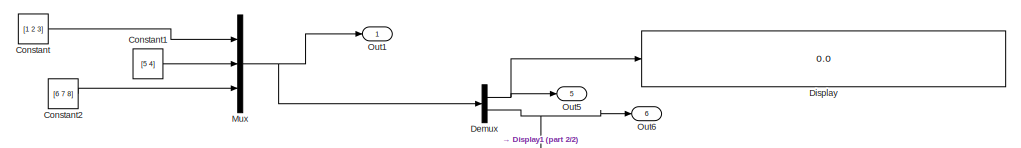
[diagram: root canvas - part 1/2, full width, top band]
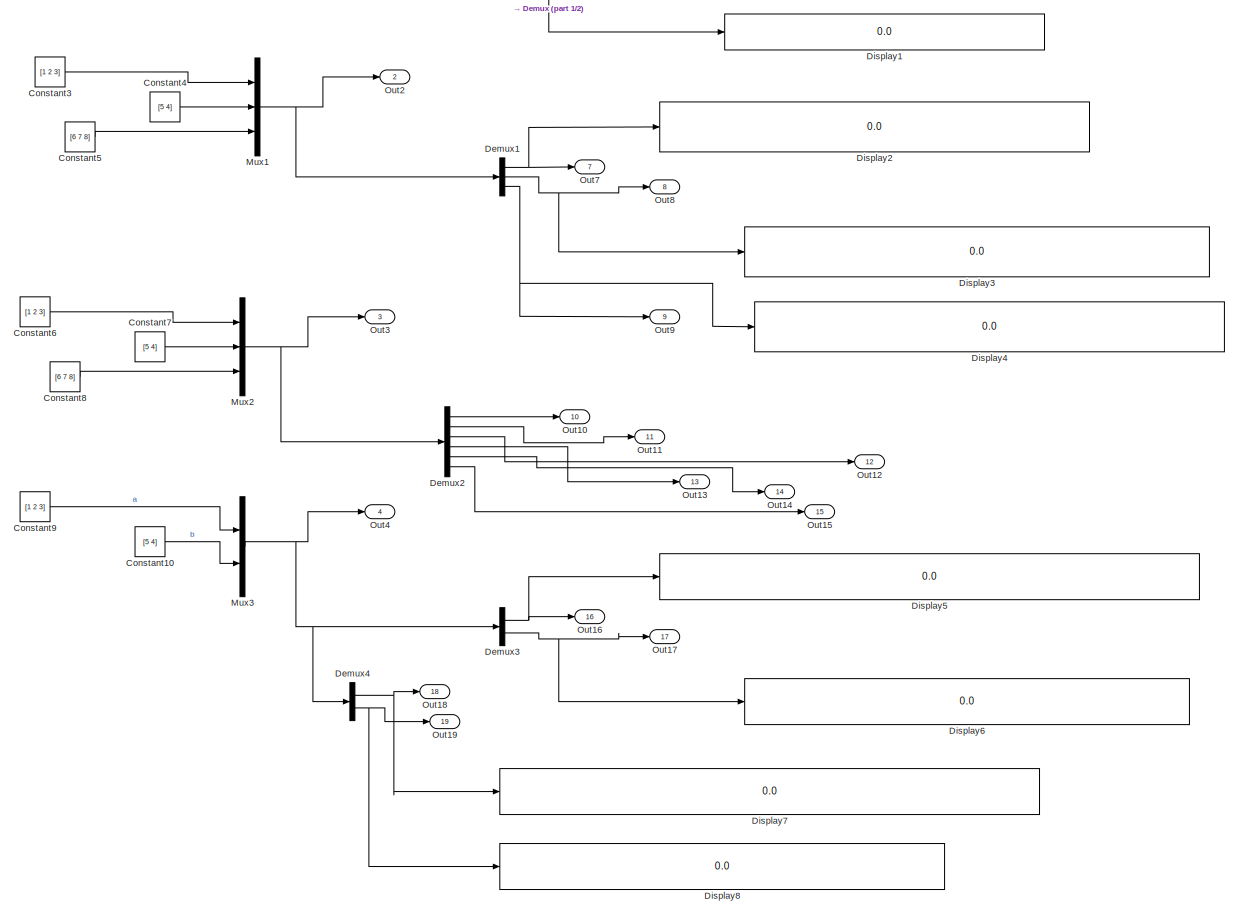
[diagram: root canvas - part 2/2, most of the canvas]
MODEL slx_6f7d9aa6d391
KIND model
CONFIG AbsTol = auto
CONFIG EnableMultiTasking = off
CONFIG FixedStep = 0.200000
CONFIG MaxStep = auto
CONFIG MinStep = auto
CONFIG RelTol = 1e-3
CONFIG SampleTimeConstraint = Unconstrained
CONFIG Solver = FixedStepDiscrete
CONFIG SolverName = FixedStepDiscrete
CONFIG StartTime = 0.0
CONFIG StopTime = 10.0
BLOCK [Constant] Constant
  Value = [1 2 3]
BLOCK [Constant] Constant1
  Value = [5  4]
BLOCK [Constant] Constant10
  Value = [5  4]
BLOCK [Constant] Constant2
  Value = [6 7 8]
BLOCK [Constant] Constant3
  OutDataTypeStr = int8
  Value = [1 2 3]
BLOCK [Constant] Constant4
  OutDataTypeStr = int8
  Value = [5  4]
BLOCK [Constant] Constant5
  OutDataTypeStr = int8
  Value = [6 7 8]
BLOCK [Constant] Constant6
  Value = [1 2 3]
BLOCK [Constant] Constant7
  Value = [5  4]
BLOCK [Constant] Constant8
  Value = [6 7 8]
BLOCK [Constant] Constant9
  Value = [1 2 3]
BLOCK [Demux] Demux
  DisplayOption = bar
  Outputs = 2
  Ports = [1, 2]
BLOCK [Demux] Demux1
  DisplayOption = bar
  Outputs = 3
  Ports = [1, 3]
BLOCK [Demux] Demux2
  DisplayOption = bar
  Outputs = 6
  Ports = [1, 6]
BLOCK [Demux] Demux3
  DisplayOption = bar
  Outputs = [2 3]
  Ports = [1, 2]
BLOCK [Demux] Demux4
  DisplayOption = bar
  Outputs = 2
  Ports = [1, 2]
BLOCK [Display] Display
  Decimation = 1
  Ports = [1]
BLOCK [Display] Display1
  Decimation = 1
  Ports = [1]
BLOCK [Display] Display2
  Decimation = 1
  Ports = [1]
BLOCK [Display] Display3
  Decimation = 1
  Ports = [1]
BLOCK [Display] Display4
  Decimation = 1
  Ports = [1]
BLOCK [Display] Display5
  Decimation = 1
  Ports = [1]
BLOCK [Display] Display6
  Decimation = 1
  Ports = [1]
BLOCK [Display] Display7
  Decimation = 1
  Ports = [1]
BLOCK [Display] Display8
  Decimation = 1
  Ports = [1]
BLOCK [Mux] Mux
  DisplayOption = bar
  Inputs = 3
  Ports = [3, 1]
BLOCK [Mux] Mux1
  DisplayOption = bar
  Inputs = [3,2,3]
  Ports = [3, 1]
BLOCK [Mux] Mux2
  DisplayOption = bar
  Inputs = {3,2,3}
  Ports = [3, 1]
BLOCK [Mux] Mux3
  DisplayOption = bar
  Inputs = a,b
  Ports = [2, 1]
BLOCK [Outport] Out1
  IconDisplay = Port number
BLOCK [Outport] Out10
  IconDisplay = Port number
  Port = 10
BLOCK [Outport] Out11
  IconDisplay = Port number
  Port = 11
BLOCK [Outport] Out12
  IconDisplay = Port number
  Port = 12
BLOCK [Outport] Out13
  IconDisplay = Port number
  Port = 13
BLOCK [Outport] Out14
  IconDisplay = Port number
  Port = 14
BLOCK [Outport] Out15
  IconDisplay = Port number
  Port = 15
BLOCK [Outport] Out16
  IconDisplay = Port number
  Port = 16
BLOCK [Outport] Out17
  IconDisplay = Port number
  Port = 17
BLOCK [Outport] Out18
  IconDisplay = Port number
  Port = 18
BLOCK [Outport] Out19
  IconDisplay = Port number
  Port = 19
BLOCK [Outport] Out2
  IconDisplay = Port number
  Port = 2
BLOCK [Outport] Out3
  IconDisplay = Port number
  Port = 3
BLOCK [Outport] Out4
  IconDisplay = Port number
  Port = 4
BLOCK [Outport] Out5
  IconDisplay = Port number
  Port = 5
BLOCK [Outport] Out6
  IconDisplay = Port number
  Port = 6
BLOCK [Outport] Out7
  IconDisplay = Port number
  Port = 7
BLOCK [Outport] Out8
  IconDisplay = Port number
  Port = 8
BLOCK [Outport] Out9
  IconDisplay = Port number
  Port = 9
LINE Constant10:1 -> Mux3:2
LINE Constant1:1 -> Mux:2
LINE Constant2:1 -> Mux:3
LINE Constant3:1 -> Mux1:1
LINE Constant4:1 -> Mux1:2
LINE Constant5:1 -> Mux1:3
LINE Constant6:1 -> Mux2:1
LINE Constant7:1 -> Mux2:2
LINE Constant8:1 -> Mux2:3
LINE Constant9:1 -> Mux3:1
LINE Constant:1 -> Mux:1
NET Demux1:1 -> Display2:1, Out7:1
NET Demux1:2 -> Display3:1, Out8:1
NET Demux1:3 -> Display4:1, Out9:1
LINE Demux2:1 -> Out10:1
LINE Demux2:2 -> Out11:1
LINE Demux2:3 -> Out12:1
LINE Demux2:4 -> Out13:1
LINE Demux2:5 -> Out14:1
LINE Demux2:6 -> Out15:1
NET Demux3:1 -> Display5:1, Out16:1
NET Demux3:2 -> Display6:1, Out17:1
NET Demux4:1 -> Display7:1, Out18:1
NET Demux4:2 -> Display8:1, Out19:1
NET Demux:1 -> Display:1, Out5:1
NET Demux:2 -> Display1:1, Out6:1
NET Mux1:1 -> Demux1:1, Out2:1
NET Mux2:1 -> Demux2:1, Out3:1
NET Mux3:1 -> Demux3:1, Demux4:1, Out4:1
NET Mux:1 -> Demux:1, Out1:1
note: NET lines group one-source signal fan-out (src -> all destinations, sorted); 1:1 wires keep LINE
